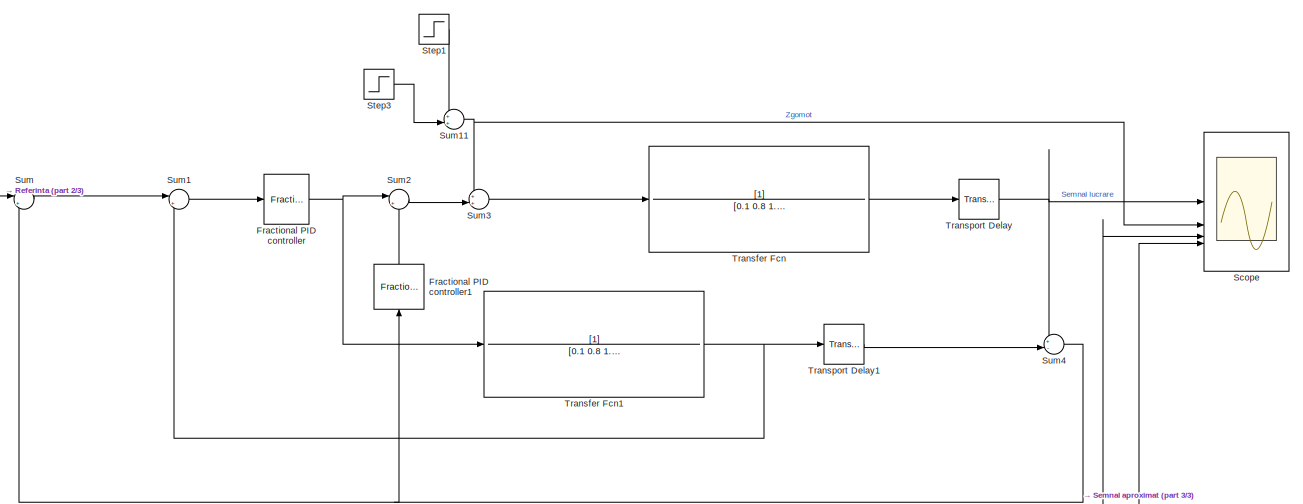
[diagram: root canvas - part 1/3, full width, top band]
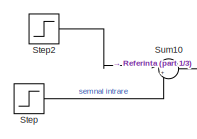
[diagram: root canvas - part 2/3, top left region]
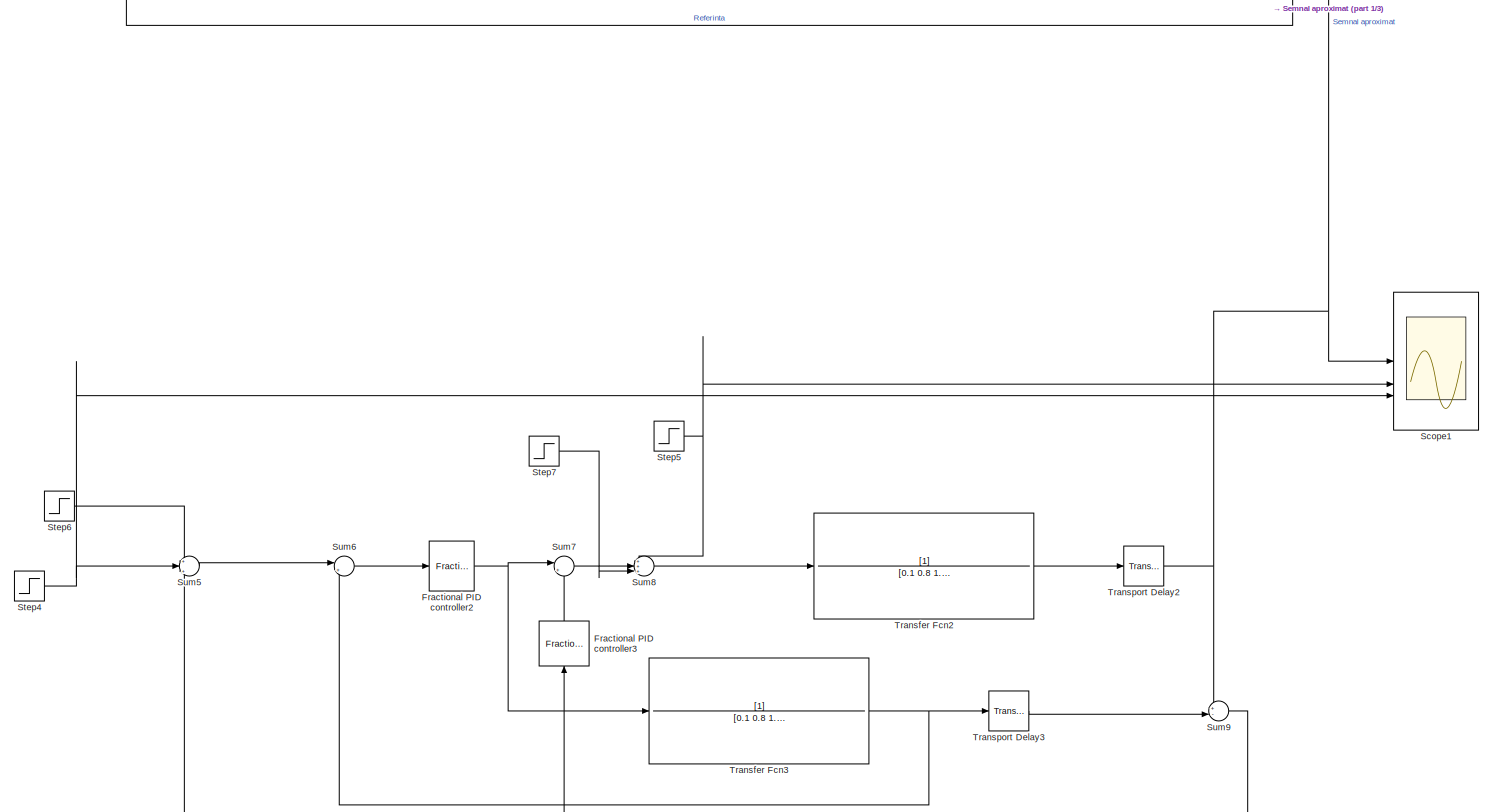
[diagram: root canvas - part 3/3, full width, bottom band]
MODEL slx_5a3327dfc1f1
KIND model
CONFIG AbsTol = auto
CONFIG EnableMultiTasking = off
CONFIG FixedStep = auto
CONFIG MaxStep = auto
CONFIG MinStep = auto
CONFIG RelTol = 1e-3
CONFIG SampleTimeConstraint = Unconstrained
CONFIG SolverName = VariableStepAuto
CONFIG StartTime = 0.0
CONFIG StopTime = 400
BLOCK [Reference] Fractional PID controller  REF=fod/Fractional PID  (lib defined in slx_5cb2d42c7bef)
controller
  SourceBlock = fod/Fractional PID\ncontroller
  SourceProductName = FOMCON Toolbox
  SourceType = Fractional PID
BLOCK [Reference] Fractional PID controller1  REF=fod/Fractional PID  (lib defined in slx_5cb2d42c7bef)
controller
  NameLocation = right
  SourceBlock = fod/Fractional PID\ncontroller
  SourceProductName = FOMCON Toolbox
  SourceType = Fractional PID
BLOCK [Reference] Fractional PID controller2  REF=fod/Fractional PID  (lib defined in slx_5cb2d42c7bef)
controller
  SourceBlock = fod/Fractional PID\ncontroller
  SourceProductName = FOMCON Toolbox
  SourceType = Fractional PID
BLOCK [Reference] Fractional PID controller3  REF=fod/Fractional PID  (lib defined in slx_5cb2d42c7bef)
controller
  NameLocation = right
  SourceBlock = fod/Fractional PID\ncontroller
  SourceProductName = FOMCON Toolbox
  SourceType = Fractional PID
BLOCK [Scope] Scope
  Floating = off
  NumInputPorts = 4
  ScopeSpecificationString = Simulink.scopes.TimeScopeBlockCfg('CurrentConfiguration', extmgr.ConfigurationSet(extmgr.Configuration('Core','General UI',true),extmgr.Configuration('Core','Source UI',true),extmgr.Configuration('Sources','WiredSimulink',true),extmgr.Configuration('Visuals','Time Domain',true,'SerializedDisplays',{struct('MinYLimReal','-0.43818','MaxYLimReal','2.94359','YLabelReal','','MinYLimMag','0.00000','MaxY...<+1630ch>
BLOCK [Scope] Scope1
  Floating = off
  NumInputPorts = 5
  ScopeSpecificationString = Simulink.scopes.TimeScopeBlockCfg('CurrentConfiguration', extmgr.ConfigurationSet(extmgr.Configuration('Core','General UI',true),extmgr.Configuration('Core','Source UI',true),extmgr.Configuration('Sources','WiredSimulink',true,'DataLoggingVariableName','ScopeData1'),extmgr.Configuration('Visuals','Time Domain',true,'SerializedDisplays',{struct('MinYLimReal','-0.43818','MaxYLimReal','2.94359','YLab...<+1564ch>
BLOCK [Step] Step
  SampleTime = 0
  Time = 0
BLOCK [Step] Step1
  After = -0.1
  SampleTime = 0
  Time = 100
BLOCK [Step] Step2
  SampleTime = 0
  Time = 200
BLOCK [Step] Step3
  After = 0.1
  SampleTime = 0
  Time = 300
BLOCK [Step] Step4
  SampleTime = 0
  Time = 0
BLOCK [Step] Step5
  After = -0.1
  SampleTime = 0
  Time = 100
BLOCK [Step] Step6
  SampleTime = 0
  Time = 200
BLOCK [Step] Step7
  After = 0.1
  SampleTime = 0
  Time = 300
BLOCK [Sum] Sum
  Inputs = |+-
BLOCK [Sum] Sum1
  Inputs = |+-
BLOCK [Sum] Sum10
  Inputs = |++
BLOCK [Sum] Sum11
  Inputs = ++|
BLOCK [Sum] Sum2
  Inputs = |+-
BLOCK [Sum] Sum3
  Inputs = ++|
BLOCK [Sum] Sum4
  Inputs = +-|
BLOCK [Sum] Sum5
  Inputs = +|+-
BLOCK [Sum] Sum6
  Inputs = |+-
BLOCK [Sum] Sum7
  Inputs = |+-
BLOCK [Sum] Sum8
  Inputs = +++|
BLOCK [Sum] Sum9
  Inputs = +-|
BLOCK [TransferFcn] Transfer Fcn
  Denominator = [0.1  0.8  1.7  1 0]
BLOCK [TransferFcn] Transfer Fcn1
  Denominator = [0.1  0.8  1.7  1 0]
BLOCK [TransferFcn] Transfer Fcn2
  Denominator = [0.1  0.8  1.7  1 0]
BLOCK [TransferFcn] Transfer Fcn3
  Denominator = [0.1  0.8  1.7  1 0]
BLOCK [TransportDelay] Transport Delay
  DelayTime = 2
BLOCK [TransportDelay] Transport Delay1
  DelayTime = 2
BLOCK [TransportDelay] Transport Delay2
  DelayTime = 2
BLOCK [TransportDelay] Transport Delay3
  DelayTime = 2
LINE Fractional PID controller1:1 -> Sum2:2
NET Fractional PID controller2:1 -> Sum7:1, Transfer Fcn3:1
LINE Fractional PID controller3:1 -> Sum7:2
NET Fractional PID controller:1 -> Sum2:1, Transfer Fcn1:1
LINE Step1:1 -> Sum11:1
LINE Step2:1 -> Sum10:1
LINE Step3:1 -> Sum11:2
NET Step4:1 -> Scope1:3, Sum5:2
NET Step5:1 -> Scope1:2, Sum8:1
LINE Step6:1 -> Sum5:1
LINE Step7:1 -> Sum8:2
LINE Step:1 -> Sum10:2
NET Sum10:1 -> Scope:3, Sum:1
NET Sum11:1 -> Scope:2, Sum3:1
LINE Sum1:1 -> Fractional PID controller:1
LINE Sum2:1 -> Sum3:2
LINE Sum3:1 -> Transfer Fcn:1
NET Sum4:1 -> Fractional PID controller1:1, Sum:2
LINE Sum5:1 -> Sum6:1
LINE Sum6:1 -> Fractional PID controller2:1
LINE Sum7:1 -> Sum8:3
LINE Sum8:1 -> Transfer Fcn2:1
NET Sum9:1 -> Fractional PID controller3:1, Sum5:3
LINE Sum:1 -> Sum1:1
NET Transfer Fcn1:1 -> Sum1:2, Transport Delay1:1
LINE Transfer Fcn2:1 -> Transport Delay2:1
NET Transfer Fcn3:1 -> Sum6:2, Transport Delay3:1
LINE Transfer Fcn:1 -> Transport Delay:1
LINE Transport Delay1:1 -> Sum4:2
NET Transport Delay2:1 -> Scope1:1, Scope:4, Sum9:1
LINE Transport Delay3:1 -> Sum9:2
NET Transport Delay:1 -> Scope:1, Sum4:1
note: NET lines group one-source signal fan-out (src -> all destinations, sorted); 1:1 wires keep LINE
